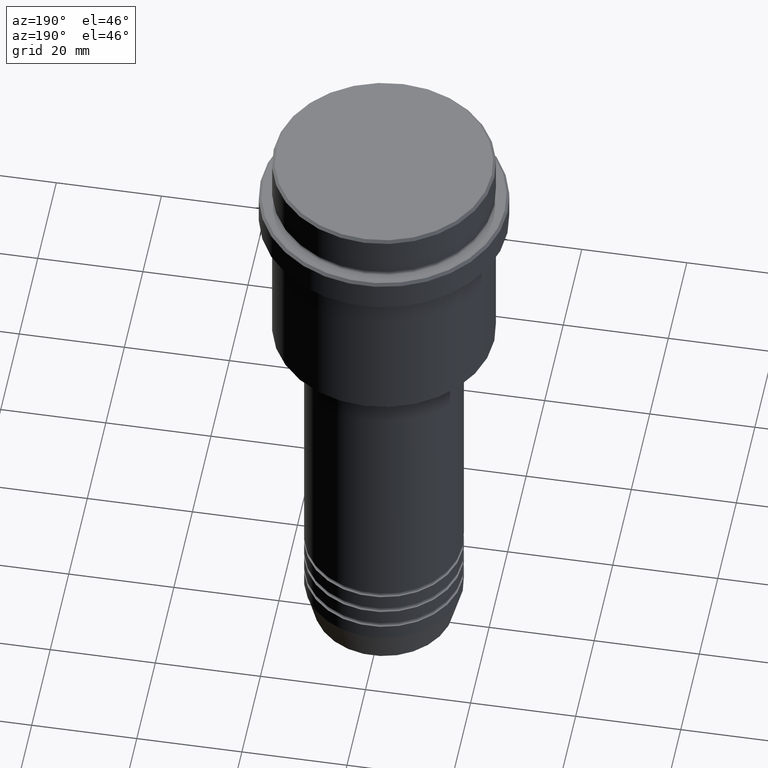
[diagram: clean part render]
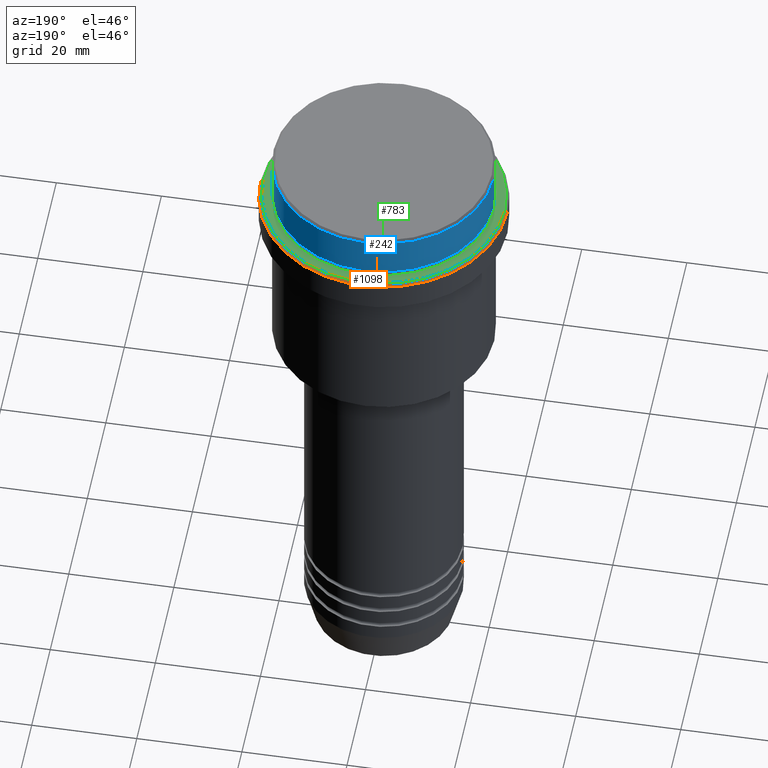
[diagram: same view with three faces highlighted in distinct colors, each labeled with its STEP entity id]
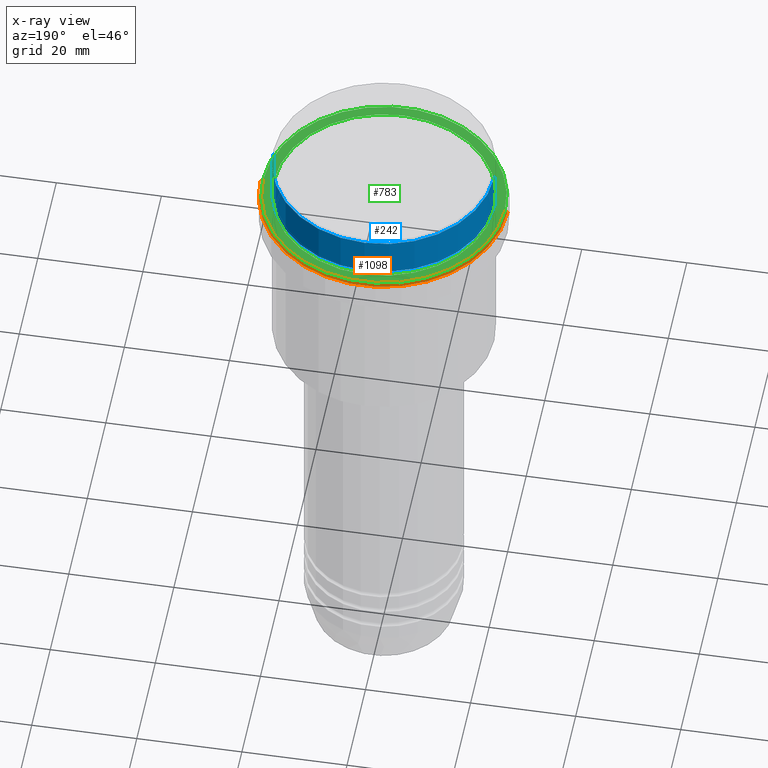
[diagram: x-ray of the same camera — body ghosted, the three highlighted faces saturated]
A machine part, auxiliary view with three faces highlighted in distinct colors.
The next image is the same camera in x-ray (body ghosted, the three faces saturated) — at least one of them is partly hidden behind the body in this view.
Their STEP definitions:

[orange] entity #1098 — the highlighted conical surface has half-angle 45 deg.
#20 = DIRECTION ( 'NONE',  ( -0.000000000000000000, -0.000000000000000000, 1.000000000000000000 ) ) ;
#23 = CONICAL_SURFACE ( 'NONE', #44, 22.99999999999998224, 0.7853981633974378429 ) ;
#44 = AXIS2_PLACEMENT_3D ( 'NONE', #81, #843, #963 ) ;
#57 = EDGE_LOOP ( 'NONE', ( #899, #694, #1399, #1076 ) ) ;
#64 = CIRCLE ( 'NONE', #469, 22.99999999999998224 ) ;
#81 = CARTESIAN_POINT ( 'NONE',  ( 0.000000000000000000, 0.000000000000000000, -9.000000000000000000 ) ) ;
#166 = DIRECTION ( 'NONE',  ( 1.000000000000000000, 0.000000000000000000, 0.000000000000000000 ) ) ;
#252 = LINE ( 'NONE', #476, #1414 ) ;
#296 = CARTESIAN_POINT ( 'NONE',  ( -23.50000000000000000, 2.877919977996280320E-15, -9.500000000000026645 ) ) ;
#469 = AXIS2_PLACEMENT_3D ( 'NONE', #772, #20, #850 ) ;
#476 = CARTESIAN_POINT ( 'NONE',  ( -22.99999999999998224, 0.000000000000000000, -9.000000000000000000 ) ) ;
#483 = EDGE_CURVE ( 'NONE', #756, #651, #64, .T. ) ;
#553 = CARTESIAN_POINT ( 'NONE',  ( -22.99999999999998224, 0.000000000000000000, -9.000000000000000000 ) ) ;
#561 = AXIS2_PLACEMENT_3D ( 'NONE', #691, #1340, #166 ) ;
#649 = VECTOR ( 'NONE', #1213, 1000.000000000000000 ) ;
#651 = VERTEX_POINT ( 'NONE', #553 ) ;
#686 = EDGE_CURVE ( 'NONE', #756, #1337, #1314, .T. ) ;
#691 = CARTESIAN_POINT ( 'NONE',  ( 0.000000000000000000, 0.000000000000000000, -9.500000000000026645 ) ) ;
#694 = ORIENTED_EDGE ( 'NONE', *, *, #686, .T. ) ;
#756 = VERTEX_POINT ( 'NONE', #1135 ) ;
#772 = CARTESIAN_POINT ( 'NONE',  ( 0.000000000000000000, 0.000000000000000000, -9.000000000000000000 ) ) ;
#838 = VERTEX_POINT ( 'NONE', #296 ) ;
#843 = DIRECTION ( 'NONE',  ( 0.000000000000000000, 0.000000000000000000, -1.000000000000000000 ) ) ;
#850 = DIRECTION ( 'NONE',  ( 1.000000000000000000, 0.000000000000000000, 0.000000000000000000 ) ) ;
#899 = ORIENTED_EDGE ( 'NONE', *, *, #483, .F. ) ;
#963 = DIRECTION ( 'NONE',  ( -1.000000000000000000, 0.000000000000000000, 0.000000000000000000 ) ) ;
#984 = CARTESIAN_POINT ( 'NONE',  ( 23.50000000000000000, 0.000000000000000000, -9.500000000000026645 ) ) ;
#986 = CARTESIAN_POINT ( 'NONE',  ( 22.99999999999998224, 2.816687638038910380E-15, -9.000000000000000000 ) ) ;
#988 = EDGE_CURVE ( 'NONE', #651, #838, #252, .T. ) ;
#1076 = ORIENTED_EDGE ( 'NONE', *, *, #988, .F. ) ;
#1083 = FACE_OUTER_BOUND ( 'NONE', #57, .T. ) ;
#1098 = ADVANCED_FACE ( 'NONE', ( #1083 ), #23, .T. ) ;
#1135 = CARTESIAN_POINT ( 'NONE',  ( 22.99999999999998224, 2.847303808017595350E-15, -9.000000000000000000 ) ) ;
#1212 = CIRCLE ( 'NONE', #561, 23.50000000000000000 ) ;
#1213 = DIRECTION ( 'NONE',  ( 0.7071067811865401342, 8.659560562354842879E-17, -0.7071067811865549002 ) ) ;
#1231 = DIRECTION ( 'NONE',  ( -0.7071067811865401342, 0.000000000000000000, -0.7071067811865549002 ) ) ;
#1314 = LINE ( 'NONE', #986, #649 ) ;
#1337 = VERTEX_POINT ( 'NONE', #984 ) ;
#1340 = DIRECTION ( 'NONE',  ( 0.000000000000000000, 0.000000000000000000, -1.000000000000000000 ) ) ;
#1358 = EDGE_CURVE ( 'NONE', #838, #1337, #1212, .T. ) ;
#1399 = ORIENTED_EDGE ( 'NONE', *, *, #1358, .F. ) ;
#1414 = VECTOR ( 'NONE', #1231, 1000.000000000000000 ) ;

[blue] entity #242 — the highlighted cylindrical surface (partial cylindrical patch) has radius 21 mm, axis along (-0, -0, 1).
#22 = LINE ( 'NONE', #147, #137 ) ;
#76 = FACE_OUTER_BOUND ( 'NONE', #994, .T. ) ;
#116 = VERTEX_POINT ( 'NONE', #1257 ) ;
#137 = VECTOR ( 'NONE', #257, 1000.000000000000000 ) ;
#147 = CARTESIAN_POINT ( 'NONE',  ( -21.00000000000000000, 2.571758278209441661E-15, 0.000000000000000000 ) ) ;
#227 = ORIENTED_EDGE ( 'NONE', *, *, #363, .T. ) ;
#242 = ADVANCED_FACE ( 'NONE', ( #76 ), #446, .T. ) ;
#257 = DIRECTION ( 'NONE',  ( -0.000000000000000000, -0.000000000000000000, 1.000000000000000000 ) ) ;
#261 = LINE ( 'NONE', #373, #419 ) ;
#267 = CIRCLE ( 'NONE', #1390, 21.00000000000000000 ) ;
#317 = EDGE_CURVE ( 'NONE', #1175, #116, #261, .T. ) ;
#363 = EDGE_CURVE ( 'NONE', #1157, #116, #267, .T. ) ;
#373 = CARTESIAN_POINT ( 'NONE',  ( 21.00000000000000000, 0.000000000000000000, 0.000000000000000000 ) ) ;
#392 = DIRECTION ( 'NONE',  ( -0.000000000000000000, -0.000000000000000000, 1.000000000000000000 ) ) ;
#393 = ORIENTED_EDGE ( 'NONE', *, *, #317, .F. ) ;
#419 = VECTOR ( 'NONE', #482, 1000.000000000000000 ) ;
#446 = CYLINDRICAL_SURFACE ( 'NONE', #1140, 21.00000000000000000 ) ;
#482 = DIRECTION ( 'NONE',  ( -0.000000000000000000, -0.000000000000000000, 1.000000000000000000 ) ) ;
#507 = CARTESIAN_POINT ( 'NONE',  ( 0.000000000000000000, 0.000000000000000000, 0.000000000000000000 ) ) ;
#819 = ORIENTED_EDGE ( 'NONE', *, *, #1405, .T. ) ;
#828 = CARTESIAN_POINT ( 'NONE',  ( 21.00000000000000000, 0.000000000000000000, -7.999999999999998224 ) ) ;
#887 = DIRECTION ( 'NONE',  ( 0.000000000000000000, 0.000000000000000000, -1.000000000000000000 ) ) ;
#940 = DIRECTION ( 'NONE',  ( -0.000000000000000000, -0.000000000000000000, 1.000000000000000000 ) ) ;
#960 = VERTEX_POINT ( 'NONE', #1249 ) ;
#994 = EDGE_LOOP ( 'NONE', ( #1403, #819, #227, #393 ) ) ;
#1008 = DIRECTION ( 'NONE',  ( 1.000000000000000000, 0.000000000000000000, 0.000000000000000000 ) ) ;
#1124 = AXIS2_PLACEMENT_3D ( 'NONE', #1382, #392, #1280 ) ;
#1140 = AXIS2_PLACEMENT_3D ( 'NONE', #507, #940, #1386 ) ;
#1144 = EDGE_CURVE ( 'NONE', #1175, #960, #1168, .T. ) ;
#1157 = VERTEX_POINT ( 'NONE', #1387 ) ;
#1168 = CIRCLE ( 'NONE', #1124, 21.00000000000000000 ) ;
#1175 = VERTEX_POINT ( 'NONE', #828 ) ;
#1249 = CARTESIAN_POINT ( 'NONE',  ( -21.00000000000000000, 2.571758278209441661E-15, -7.999999999999998224 ) ) ;
#1255 = CARTESIAN_POINT ( 'NONE',  ( 0.000000000000000000, 0.000000000000000000, -0.4999999999999831246 ) ) ;
#1257 = CARTESIAN_POINT ( 'NONE',  ( 21.00000000000000000, 0.000000000000000000, -0.4999999999999831246 ) ) ;
#1280 = DIRECTION ( 'NONE',  ( 1.000000000000000000, 0.000000000000000000, 0.000000000000000000 ) ) ;
#1382 = CARTESIAN_POINT ( 'NONE',  ( 0.000000000000000000, 0.000000000000000000, -7.999999999999998224 ) ) ;
#1386 = DIRECTION ( 'NONE',  ( 1.000000000000000000, 0.000000000000000000, 0.000000000000000000 ) ) ;
#1387 = CARTESIAN_POINT ( 'NONE',  ( -21.00000000000000000, 2.571758278209441661E-15, -0.4999999999999831246 ) ) ;
#1390 = AXIS2_PLACEMENT_3D ( 'NONE', #1255, #887, #1008 ) ;
#1403 = ORIENTED_EDGE ( 'NONE', *, *, #1144, .T. ) ;
#1405 = EDGE_CURVE ( 'NONE', #960, #1157, #22, .T. ) ;

[green] entity #783 — the highlighted planar face has unit normal (0, -0, 1).
#11 = CARTESIAN_POINT ( 'NONE',  ( 20.99999999999999289, 0.000000000000000000, -9.000000000000000000 ) ) ;
#20 = DIRECTION ( 'NONE',  ( -0.000000000000000000, -0.000000000000000000, 1.000000000000000000 ) ) ;
#33 = CARTESIAN_POINT ( 'NONE',  ( 0.000000000000000000, 0.000000000000000000, -9.000000000000000000 ) ) ;
#43 = EDGE_LOOP ( 'NONE', ( #1191, #526 ) ) ;
#64 = CIRCLE ( 'NONE', #469, 22.99999999999998224 ) ;
#98 = VERTEX_POINT ( 'NONE', #611 ) ;
#195 = CARTESIAN_POINT ( 'NONE',  ( 0.000000000000000000, 20.49999999999999645, -9.000000000000000000 ) ) ;
#197 = EDGE_LOOP ( 'NONE', ( #732, #688 ) ) ;
#310 = CIRCLE ( 'NONE', #536, 20.99999999999999289 ) ;
#334 = CIRCLE ( 'NONE', #1021, 20.99999999999999289 ) ;
#355 = DIRECTION ( 'NONE',  ( 0.000000000000000000, 0.000000000000000000, -1.000000000000000000 ) ) ;
#469 = AXIS2_PLACEMENT_3D ( 'NONE', #772, #20, #850 ) ;
#483 = EDGE_CURVE ( 'NONE', #756, #651, #64, .T. ) ;
#503 = PLANE ( 'NONE',  #947 ) ;
#508 = DIRECTION ( 'NONE',  ( 1.000000000000000000, 0.000000000000000000, 0.000000000000000000 ) ) ;
#526 = ORIENTED_EDGE ( 'NONE', *, *, #483, .T. ) ;
#536 = AXIS2_PLACEMENT_3D ( 'NONE', #1381, #619, #1056 ) ;
#537 = AXIS2_PLACEMENT_3D ( 'NONE', #1174, #1057, #508 ) ;
#553 = CARTESIAN_POINT ( 'NONE',  ( -22.99999999999998224, 0.000000000000000000, -9.000000000000000000 ) ) ;
#611 = CARTESIAN_POINT ( 'NONE',  ( -20.99999999999999289, 2.571758278209440872E-15, -9.000000000000000000 ) ) ;
#619 = DIRECTION ( 'NONE',  ( 0.000000000000000000, 0.000000000000000000, -1.000000000000000000 ) ) ;
#651 = VERTEX_POINT ( 'NONE', #553 ) ;
#688 = ORIENTED_EDGE ( 'NONE', *, *, #1363, .T. ) ;
#715 = FACE_OUTER_BOUND ( 'NONE', #43, .T. ) ;
#732 = ORIENTED_EDGE ( 'NONE', *, *, #806, .T. ) ;
#743 = DIRECTION ( 'NONE',  ( 1.000000000000000000, 0.000000000000000000, 0.000000000000000000 ) ) ;
#756 = VERTEX_POINT ( 'NONE', #1135 ) ;
#772 = CARTESIAN_POINT ( 'NONE',  ( 0.000000000000000000, 0.000000000000000000, -9.000000000000000000 ) ) ;
#783 = ADVANCED_FACE ( 'NONE', ( #715, #1049 ), #503, .T. ) ;
#806 = EDGE_CURVE ( 'NONE', #860, #98, #310, .T. ) ;
#850 = DIRECTION ( 'NONE',  ( 1.000000000000000000, 0.000000000000000000, 0.000000000000000000 ) ) ;
#860 = VERTEX_POINT ( 'NONE', #11 ) ;
#934 = DIRECTION ( 'NONE',  ( 0.000000000000000000, -0.000000000000000000, 1.000000000000000000 ) ) ;
#947 = AXIS2_PLACEMENT_3D ( 'NONE', #195, #934, #743 ) ;
#1021 = AXIS2_PLACEMENT_3D ( 'NONE', #33, #355, #1357 ) ;
#1049 = FACE_BOUND ( 'NONE', #197, .T. ) ;
#1056 = DIRECTION ( 'NONE',  ( 1.000000000000000000, 0.000000000000000000, 0.000000000000000000 ) ) ;
#1057 = DIRECTION ( 'NONE',  ( -0.000000000000000000, -0.000000000000000000, 1.000000000000000000 ) ) ;
#1135 = CARTESIAN_POINT ( 'NONE',  ( 22.99999999999998224, 2.847303808017595350E-15, -9.000000000000000000 ) ) ;
#1153 = EDGE_CURVE ( 'NONE', #651, #756, #1350, .T. ) ;
#1174 = CARTESIAN_POINT ( 'NONE',  ( 0.000000000000000000, 0.000000000000000000, -9.000000000000000000 ) ) ;
#1191 = ORIENTED_EDGE ( 'NONE', *, *, #1153, .T. ) ;
#1350 = CIRCLE ( 'NONE', #537, 22.99999999999998224 ) ;
#1357 = DIRECTION ( 'NONE',  ( 1.000000000000000000, 0.000000000000000000, 0.000000000000000000 ) ) ;
#1363 = EDGE_CURVE ( 'NONE', #98, #860, #334, .T. ) ;
#1381 = CARTESIAN_POINT ( 'NONE',  ( 0.000000000000000000, 0.000000000000000000, -9.000000000000000000 ) ) ;